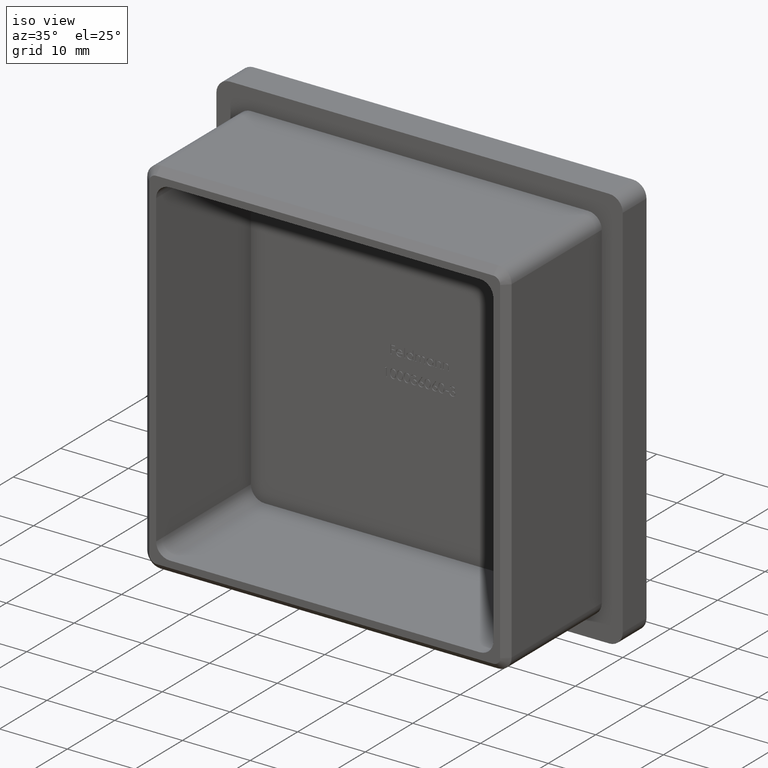
[diagram: clean part render]
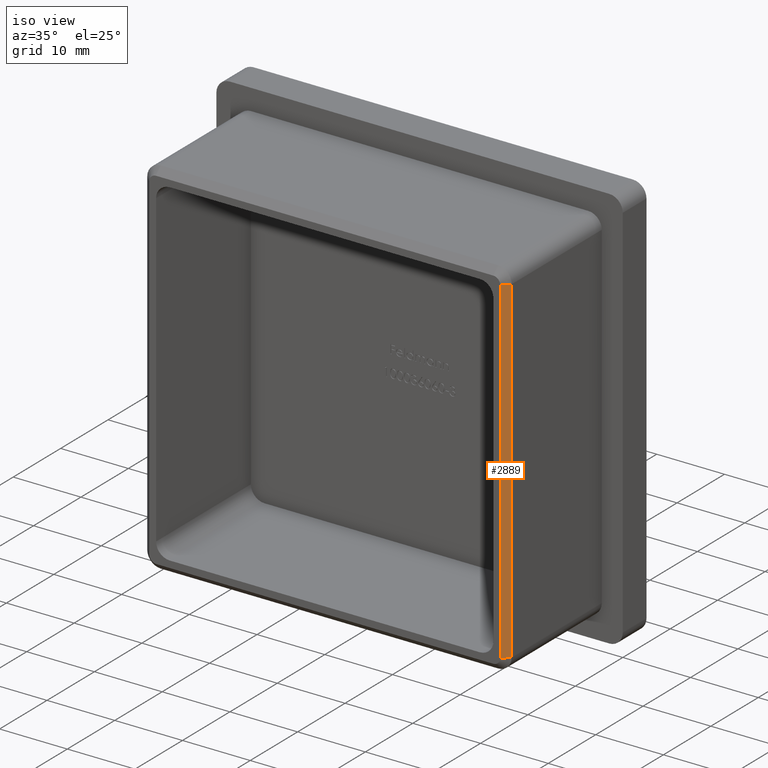
[diagram: same view with one face highlighted and labeled with its STEP entity id]
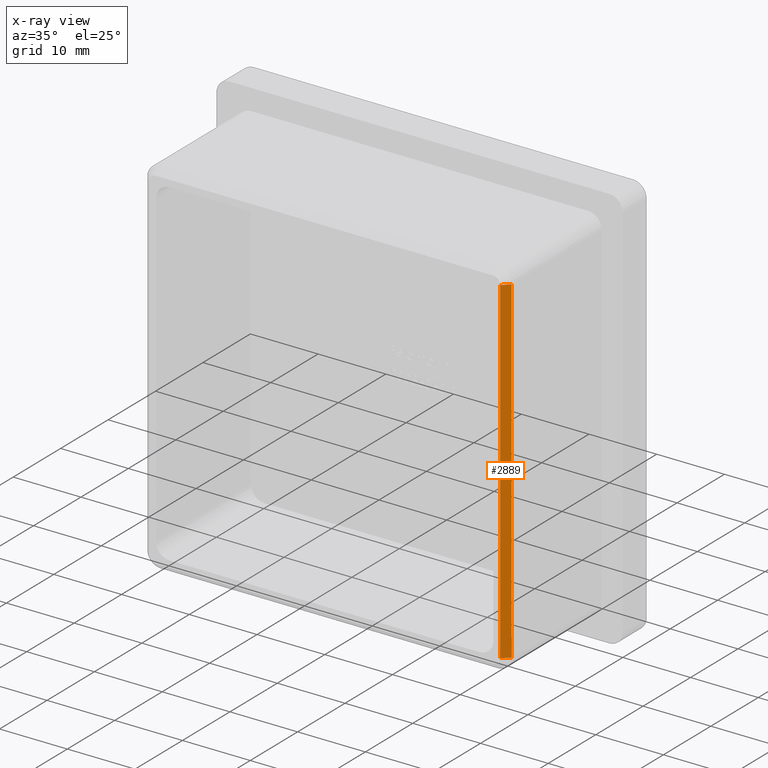
[diagram: x-ray of the same camera — body ghosted, the highlighted face saturated]
A machine part, iso view. The second image highlights one B-rep face of the part: STEP entity #2889.
The next image is the same camera in x-ray: the body ghosted, the highlighted face saturated — about 0% of this face is hidden behind the body in this view.
In plain terms, the highlighted planar face has unit normal (0.7071, -0.7071, 0).
Its self-contained STEP definition (entity closure, byte-faithful):
#205 = EDGE_LOOP ( 'NONE', ( #1393, #9585, #14374, #3090 ) ) ;
#1393 = ORIENTED_EDGE ( 'NONE', *, *, #3874, .T. ) ;
#1420 = DIRECTION ( 'NONE',  ( 0.7071067811865475700, -0.7071067811865475700, 0.0000000000000000000 ) ) ;
#1692 = DIRECTION ( 'NONE',  ( 0.0000000000000000000, 0.0000000000000000000, 1.000000000000000000 ) ) ;
#2139 = DIRECTION ( 'NONE',  ( 0.0000000000000000000, 0.0000000000000000000, -1.000000000000000000 ) ) ;
#2608 = VECTOR ( 'NONE', #5304, 1000.000000000000100 ) ;
#2889 = ADVANCED_FACE ( 'NONE', ( #14953 ), #5229, .T. ) ;
#3038 = VECTOR ( 'NONE', #2139, 1000.000000000000000 ) ;
#3090 = ORIENTED_EDGE ( 'NONE', *, *, #4517, .F. ) ;
#3874 = EDGE_CURVE ( 'NONE', #14537, #7716, #5854, .T. ) ;
#4517 = EDGE_CURVE ( 'NONE', #14537, #16217, #7675, .T. ) ;
#4612 = VECTOR ( 'NONE', #1692, 1000.000000000000000 ) ;
#5032 = VECTOR ( 'NONE', #15809, 1000.000000000000100 ) ;
#5229 = PLANE ( 'NONE',  #11375 ) ;
#5304 = DIRECTION ( 'NONE',  ( -0.7071067811865474600, -0.7071067811865474600, 0.0000000000000000000 ) ) ;
#5550 = CARTESIAN_POINT ( 'NONE',  ( 25.90000000000000200, -20.00000000000000000, 24.90000000000000600 ) ) ;
#5854 = LINE ( 'NONE', #13194, #5032 ) ;
#6284 = CARTESIAN_POINT ( 'NONE',  ( 26.90000000000000200, -19.00000000000000000, 24.90000000000000600 ) ) ;
#6493 = DIRECTION ( 'NONE',  ( 0.0000000000000000000, 0.0000000000000000000, -1.000000000000000000 ) ) ;
#6827 = CARTESIAN_POINT ( 'NONE',  ( 25.90000000000000600, -20.00000000000000000, 24.90000000000000600 ) ) ;
#7675 = LINE ( 'NONE', #5550, #4612 ) ;
#7716 = VERTEX_POINT ( 'NONE', #8069 ) ;
#8069 = CARTESIAN_POINT ( 'NONE',  ( 26.90000000000000200, -19.00000000000000000, -24.90000000000000900 ) ) ;
#9214 = CARTESIAN_POINT ( 'NONE',  ( 25.90000000000000200, -20.00000000000000000, 0.0000000000000000000 ) ) ;
#9585 = ORIENTED_EDGE ( 'NONE', *, *, #15502, .F. ) ;
#9912 = LINE ( 'NONE', #14224, #2608 ) ;
#9935 = LINE ( 'NONE', #14674, #3038 ) ;
#11375 = AXIS2_PLACEMENT_3D ( 'NONE', #9214, #1420, #6493 ) ;
#11473 = VERTEX_POINT ( 'NONE', #6284 ) ;
#11656 = CARTESIAN_POINT ( 'NONE',  ( 25.90000000000000200, -20.00000000000000000, -24.90000000000000900 ) ) ;
#13194 = CARTESIAN_POINT ( 'NONE',  ( 25.90000000000000200, -20.00000000000000000, -24.90000000000000900 ) ) ;
#14224 = CARTESIAN_POINT ( 'NONE',  ( 26.90000000000000600, -19.00000000000000000, 24.90000000000000600 ) ) ;
#14374 = ORIENTED_EDGE ( 'NONE', *, *, #15427, .T. ) ;
#14537 = VERTEX_POINT ( 'NONE', #11656 ) ;
#14674 = CARTESIAN_POINT ( 'NONE',  ( 26.90000000000000200, -19.00000000000000000, -24.90000000000000900 ) ) ;
#14953 = FACE_OUTER_BOUND ( 'NONE', #205, .T. ) ;
#15427 = EDGE_CURVE ( 'NONE', #11473, #16217, #9912, .T. ) ;
#15502 = EDGE_CURVE ( 'NONE', #11473, #7716, #9935, .T. ) ;
#15809 = DIRECTION ( 'NONE',  ( 0.7071067811865474600, 0.7071067811865474600, 0.0000000000000000000 ) ) ;
#16217 = VERTEX_POINT ( 'NONE', #6827 ) ;